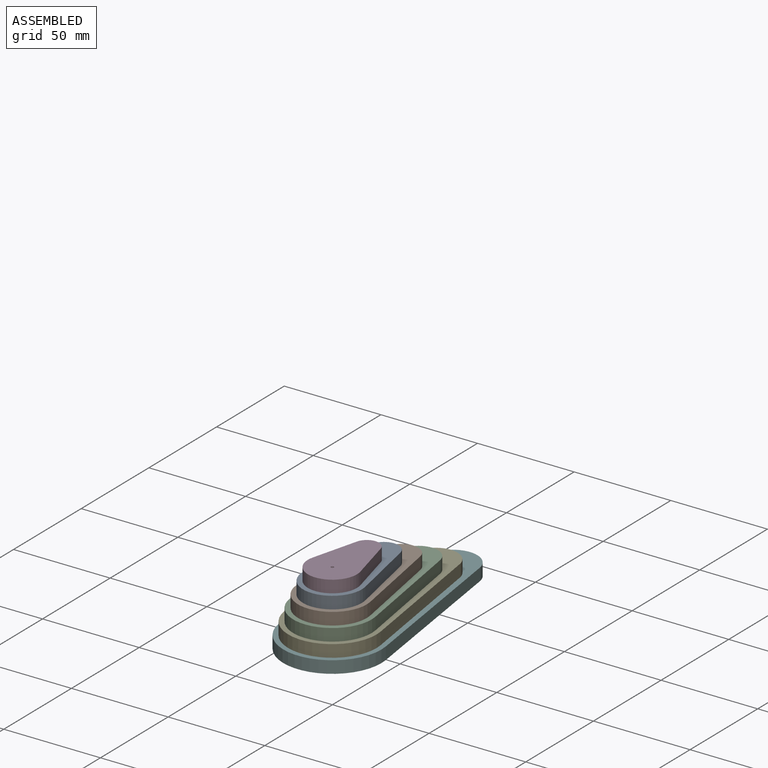
[diagram: assembled view]
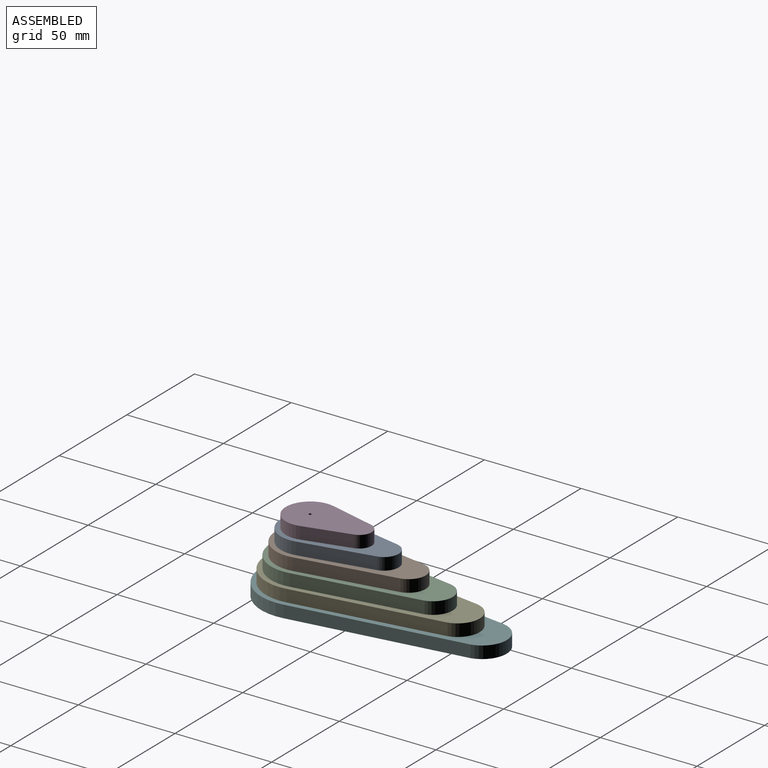
[diagram: assembled view, second angle]
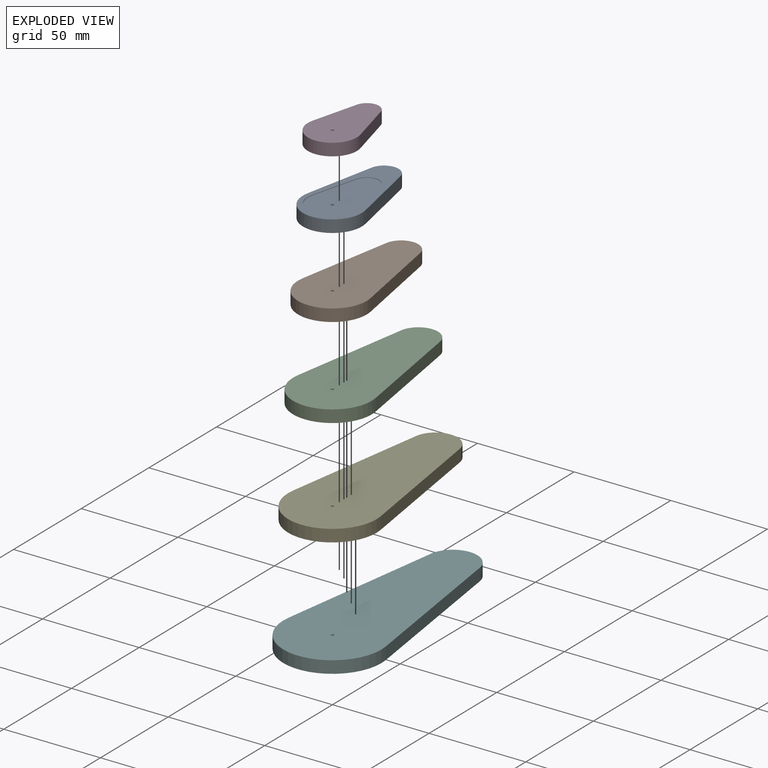
[diagram: exploded view]
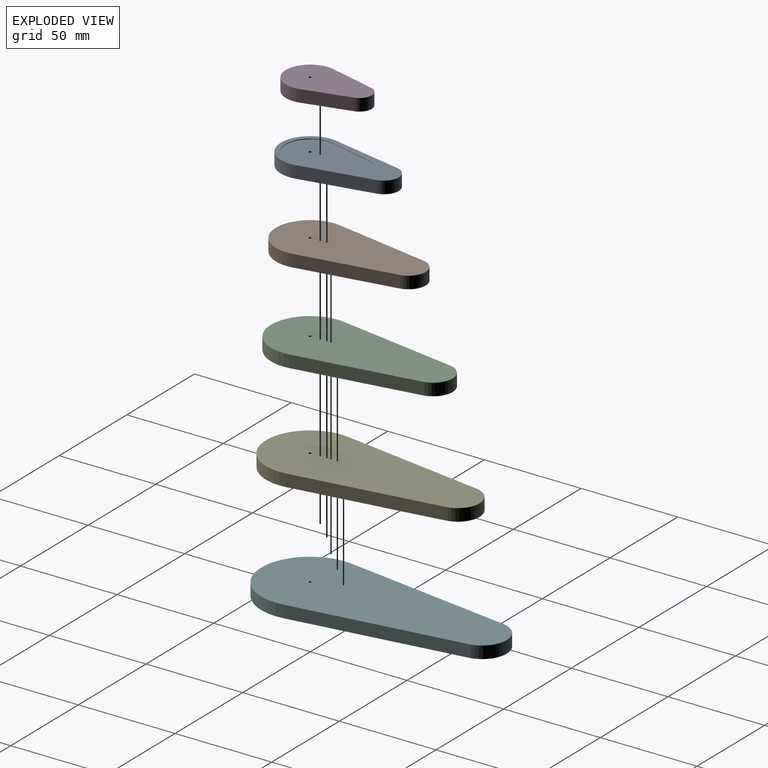
[diagram: exploded view, second angle]
ASSEMBLY  parts=6 mates=5
PART A: 12 faces, bbox 30.5x61x6.4 mm
  f0: cylinder r=0.76mm len=6.1mm, axis (0,0,-1), area 29.2mm2, adj f6,f11
  f1: cylinder r=15.24mm len=30.48mm, axis (0,0,-1), area 343mm2, adj f2,f4,f5,f6
  f2: plane 36.7x7.49mm, normal (0.98,0.2,0), area 237.9mm2, adj f1,f3,f5,f6
  f3: cylinder r=7.62mm len=14.93mm, axis (0,0,-1), area 132.5mm2, adj f2,f4,f5,f6
  f4: plane 36.45x7.44mm, normal (-0.98,0.2,0), area 236.2mm2, adj f1,f3,f5,f6
  f5: plane 60.96x30.48mm, normal (0,0,1), area 528.8mm2, adj f1,f2,f3,f4,f7,f8,f9,f10
  f6: plane 60.96x30.48mm, normal (0,0,-1), area 1342.6mm2, adj f0,f1,f2,f3,f4
  f7: cylinder r=6.35mm len=12.4mm, axis (0,0,1), area 4.4mm2, adj f5,f8,f10,f11
  f8: plane 23.6x6.1mm, normal (0.97,-0.25,0), area 6.2mm2, adj f5,f7,f9,f11
  f9: cylinder r=12.7mm len=25.4mm, axis (0,0,1), area 11.8mm2, adj f5,f8,f10,f11
  f10: plane 23.6x6.1mm, normal (-0.97,-0.25,0), area 6.2mm2, adj f5,f7,f9,f11
  f11: plane 44.45x25.4mm, normal (0,0,1), area 813.8mm2, adj f0,f7,f8,f9,f10
PART B: 7 faces, bbox 35.6x77.5x6.4 mm
  f0: cylinder r=17.78mm len=35.56mm, axis (0,0,-1), area 394.5mm2, adj f1,f3,f4,f5
  f1: plane 49.61x8.83mm, normal (0.98,0.18,0), area 320mm2, adj f0,f2,f4,f5
  f2: cylinder r=8.89mm len=17.49mm, axis (0,0,-1), area 157.5mm2, adj f1,f3,f4,f5
  f3: plane 48.87x8.69mm, normal (-0.98,0.18,0), area 315.2mm2, adj f0,f2,f4,f5
  f4: plane 77.47x35.56mm, normal (0,0,1), area 1994.1mm2, adj f0,f1,f2,f3,f6
  f5: plane 77.47x35.56mm, normal (0,0,-1), area 1994.1mm2, adj f0,f1,f2,f3,f6
  f6: cylinder r=0.76mm len=6.35mm, axis (0,0,-1), area 30.4mm2, adj f4,f5
PART C: 7 faces, bbox 40.6x94x6.4 mm
  f0: cylinder r=20.32mm len=40.64mm, axis (0,0,-1), area 446.9mm2, adj f1,f3,f4,f5
  f1: plane 61.3x9.95mm, normal (0.99,0.16,0), area 394.3mm2, adj f0,f2,f4,f5
  f2: cylinder r=10.16mm len=20.21mm, axis (0,0,-1), area 189.3mm2, adj f1,f3,f4,f5
  f3: plane 61.3x9.95mm, normal (-0.99,0.16,0), area 394.3mm2, adj f0,f2,f4,f5
  f4: plane 93.98x40.64mm, normal (0,0,1), area 2768.2mm2, adj f0,f1,f2,f3,f6
  f5: plane 93.98x40.64mm, normal (0,0,-1), area 2768.2mm2, adj f0,f1,f2,f3,f6
  f6: cylinder r=0.76mm len=6.35mm, axis (0,0,-1), area 30.4mm2, adj f4,f5
PART D: 7 faces, bbox 25.4x44.5x6.4 mm
  f0: cylinder r=12.7mm len=25.4mm, axis (0,0,-1), area 294.1mm2, adj f1,f3,f4,f5
  f1: plane 23.6x6.35mm, normal (0.97,0.25,0), area 154.8mm2, adj f0,f2,f4,f5
  f2: cylinder r=6.35mm len=12.4mm, axis (0,0,-1), area 109.1mm2, adj f1,f3,f4,f5
  f3: plane 23.6x6.35mm, normal (-0.97,0.25,0), area 154.8mm2, adj f0,f2,f4,f5
  f4: plane 44.45x25.4mm, normal (0,0,1), area 813.8mm2, adj f0,f1,f2,f3,f6
  f5: plane 44.45x25.4mm, normal (0,0,-1), area 813.8mm2, adj f0,f1,f2,f3,f6
  f6: cylinder r=0.76mm len=6.35mm, axis (0,0,-1), area 30.4mm2, adj f4,f5
PART E: 7 faces, bbox 45.7x110.5x6.4 mm
  f0: cylinder r=22.86mm len=45.72mm, axis (0,0,-1), area 499.8mm2, adj f1,f3,f4,f5
  f1: plane 73.72x11.21mm, normal (0.99,0.15,0), area 473.5mm2, adj f0,f2,f4,f5
  f2: cylinder r=11.43mm len=22.78mm, axis (0,0,-1), area 215.9mm2, adj f1,f3,f4,f5
  f3: plane 73.72x11.21mm, normal (-0.99,0.15,0), area 473.5mm2, adj f0,f2,f4,f5
  f4: plane 110.49x45.72mm, normal (0,0,1), area 3664.7mm2, adj f0,f1,f2,f3,f6
  f5: plane 110.49x45.72mm, normal (0,0,-1), area 3664.7mm2, adj f0,f1,f2,f3,f6
  f6: cylinder r=0.76mm len=6.35mm, axis (0,0,-1), area 30.4mm2, adj f4,f5
PART F: 7 faces, bbox 50.8x127x6.4 mm
  f0: cylinder r=25.4mm len=50.8mm, axis (0,0,-1), area 553.1mm2, adj f1,f3,f4,f5
  f1: plane 86.14x12.47mm, normal (0.99,0.14,0), area 552.7mm2, adj f0,f2,f4,f5
  f2: cylinder r=12.7mm len=25.34mm, axis (0,0,-1), area 242.2mm2, adj f1,f3,f4,f5
  f3: plane 86.14x12.47mm, normal (-0.99,0.14,0), area 552.7mm2, adj f0,f2,f4,f5
  f4: plane 127x50.8mm, normal (0,0,1), area 4683.6mm2, adj f0,f1,f2,f3,f6
  f5: plane 127x50.8mm, normal (0,0,-1), area 4683.6mm2, adj f0,f1,f2,f3,f6
  f6: cylinder r=0.76mm len=6.35mm, axis (0,0,-1), area 30.4mm2, adj f4,f5
PLACE A t=(0,0,3.56)mm
PLACE B t=(0,0,-2.79)mm
PLACE C t=(0,0,-9.14)mm
PLACE D t=(0,0,9.91)mm
PLACE E t=(0,0,-15.49)mm
PLACE F t=(0,0,-21.84)mm
MATE planar A.f1 <-> D.f0  axis (0,0,1) through (0,0,9.91)mm
MATE planar F.f0 <-> E.f6  axis (0,0,1) through (0,0,-15.49)mm
MATE planar B.f0 <-> A.f1  axis (0,0,1) through (0,0,3.56)mm
MATE planar C.f0 <-> B.f0  axis (0,0,1) through (0,0,-2.79)mm
MATE planar E.f0 <-> C.f0  axis (0,0,1) through (0,0,-9.14)mm
